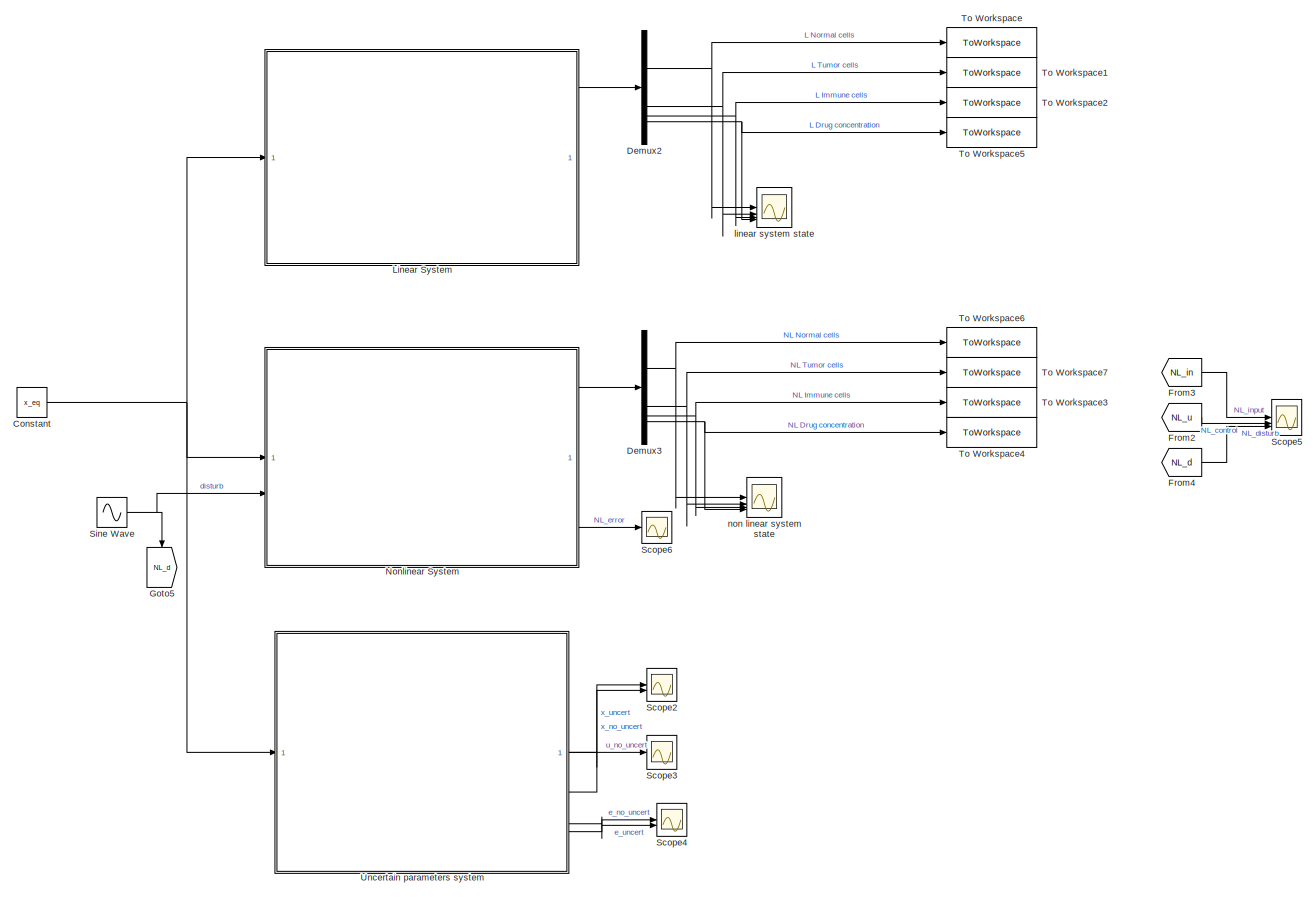
[diagram: root canvas - part 1/1, most of the canvas]
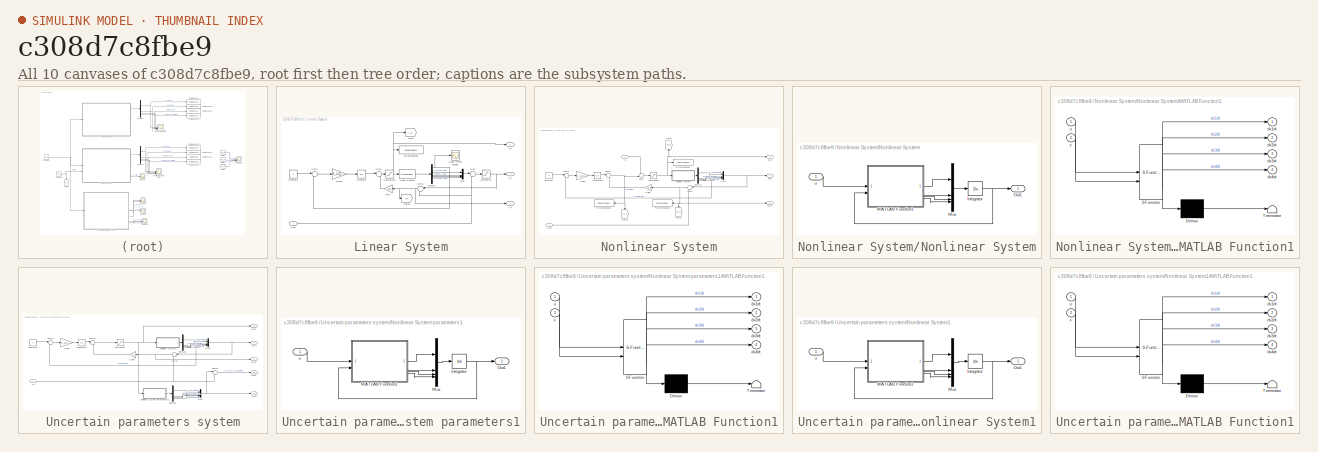
[diagram: thumbnail index - all 10 canvases of the model, root first then tree order]
MODEL slx_c308d7c8fbe9
KIND model
CONFIG AbsTol = auto
CONFIG EnableMultiTasking = off
CONFIG FixedStep = auto
CONFIG MaxStep = auto
CONFIG MinStep = auto
CONFIG RelTol = 1e-3
CONFIG SampleTimeConstraint = Unconstrained
CONFIG SolverName = ode45
CONFIG StartTime = 0.0
CONFIG StopTime = 100
BLOCK [Constant] Constant
  Value = x_eq
BLOCK [Demux] Demux2
BLOCK [Demux] Demux3
BLOCK [From] From2
  GotoTag = NL_u
BLOCK [From] From3
  GotoTag = NL_in
BLOCK [From] From4
  GotoTag = NL_d
BLOCK [Goto] Goto5
  GotoTag = NL_d
  NameLocation = left
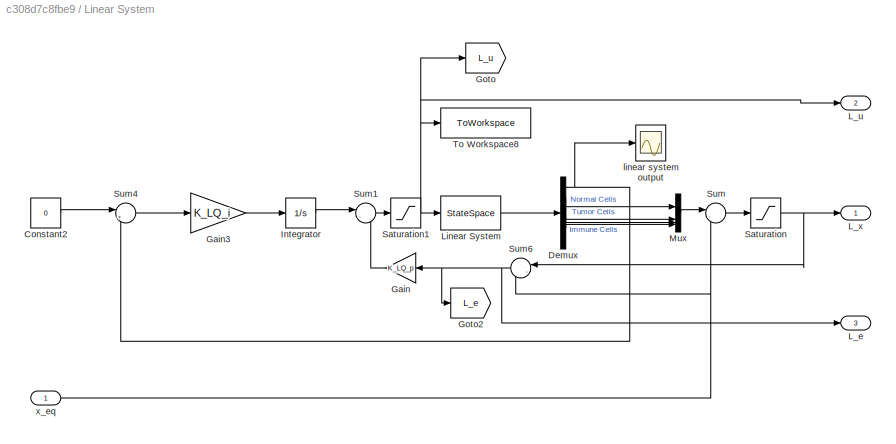
BLOCK [SubSystem] Linear System
BLOCK [Constant] Linear System/Constant2
  Value = 0
BLOCK [Demux] Linear System/Demux
  Outputs = 6
BLOCK [Gain] Linear System/Gain
  Gain = K_LQ_p
  Multiplication = Matrix(K*u)
  NameLocation = top
BLOCK [Gain] Linear System/Gain3
  Gain = K_LQ_i
  Multiplication = Matrix(K*u)
BLOCK [Goto] Linear System/Goto
  GotoTag = L_u
BLOCK [Goto] Linear System/Goto2
  GotoTag = L_e
BLOCK [Integrator] Linear System/Integrator
BLOCK [Outport] Linear System/L_e
  Port = 3
BLOCK [Outport] Linear System/L_u
  Port = 2
BLOCK [Outport] Linear System/L_x
BLOCK [StateSpace] Linear System/Linear System
  A = A_int
  B = B_int
  C = [C_int;eye(5)]
  D = [0,0,0,0,0,0]'
  InitialCondition = e_init
BLOCK [Mux] Linear System/Mux
  DisplayOption = bar
BLOCK [Saturate] Linear System/Saturation
  LowerLimit = 0
  UpperLimit = 100
BLOCK [Saturate] Linear System/Saturation1
  LowerLimit = -100
  UpperLimit = 0
BLOCK [Sum] Linear System/Sum
  Inputs = |-+
BLOCK [Sum] Linear System/Sum1
  Inputs = |--
BLOCK [Sum] Linear System/Sum4
  Inputs = |+-
BLOCK [Sum] Linear System/Sum6
  Inputs = |-+
  NameLocation = top
BLOCK [ToWorkspace] Linear System/To Workspace8
  FixptAsFi = on
  MaxDataPoints = inf
  SampleTime = -1
  SaveFormat = Timeseries
  VariableName = L_control
BLOCK [Scope] Linear System/linear system output
  Floating = off
  NumInputPorts = 1
  ScopeSpecificationString = Simulink.scopes.TimeScopeBlockCfg('CurrentConfiguration', extmgr.ConfigurationSet(extmgr.Configuration('Core','General UI',true),extmgr.Configuration('Core','Source UI',true),extmgr.Configuration('Sources','WiredSimulink',true,'DataLoggingVariableName','ScopeData1'),extmgr.Configuration('Visuals','Time Domain',true,'SerializedDisplays',{struct('MinYLimReal','-0.34942','MaxYLimReal','0.14476','YLab...<+1528ch>
BLOCK [Inport] Linear System/x_eq
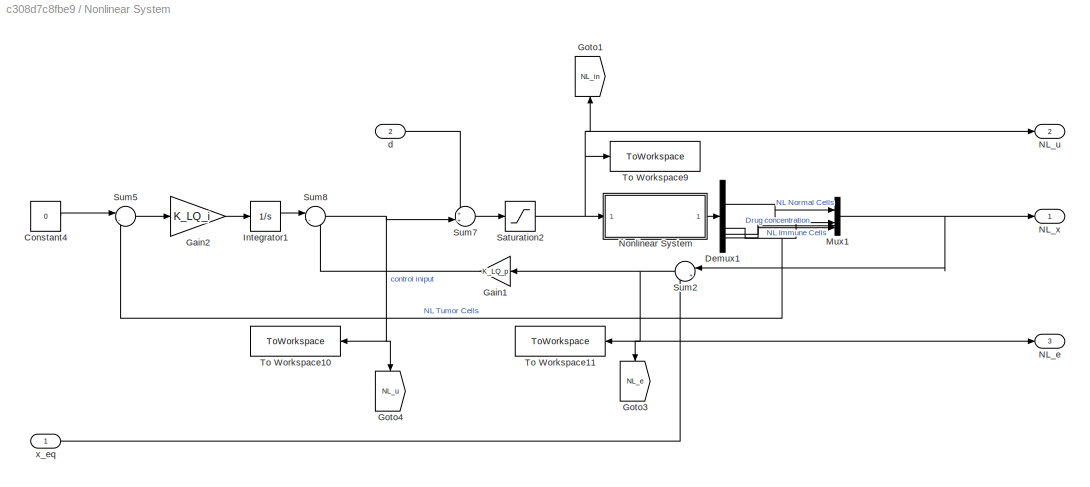
BLOCK [SubSystem] Nonlinear System
BLOCK [Constant] Nonlinear System/Constant4
  Value = 0
BLOCK [Demux] Nonlinear System/Demux1
BLOCK [Gain] Nonlinear System/Gain1
  Gain = K_LQ_p
  Multiplication = Matrix(K*u)
  NameLocation = top
BLOCK [Gain] Nonlinear System/Gain2
  Gain = K_LQ_i
  Multiplication = Matrix(K*u)
BLOCK [Goto] Nonlinear System/Goto1
  GotoTag = NL_in
  NameLocation = right
BLOCK [Goto] Nonlinear System/Goto3
  GotoTag = NL_e
  NameLocation = left
BLOCK [Goto] Nonlinear System/Goto4
  GotoTag = NL_u
  NameLocation = left
BLOCK [Integrator] Nonlinear System/Integrator1
BLOCK [Mux] Nonlinear System/Mux1
  DisplayOption = bar
BLOCK [Outport] Nonlinear System/NL_e
  Port = 3
BLOCK [Outport] Nonlinear System/NL_u
  Port = 2
BLOCK [Outport] Nonlinear System/NL_x
BLOCK [SubSystem] Nonlinear System/Nonlinear System
BLOCK [Integrator] Nonlinear System/Nonlinear System/Integrator
  InitialCondition = x_0
  LimitOutput = on
  LowerSaturationLimit = 0
  UpperSaturationLimit = +inf
BLOCK [SubSystem] Nonlinear System/Nonlinear System/MATLAB Function1
  ErrorFcn = Stateflow.Translate.translate
  PermitHierarchicalResolution = ExplicitOnly
  SFBlockType = MATLAB Function
  TreatAsAtomicUnit = on
BLOCK [Demux] Nonlinear System/Nonlinear System/MATLAB Function1/ Demux 
  Outputs = 1
BLOCK [S-Function] Nonlinear System/Nonlinear System/MATLAB Function1/ SFunction 
  EnableBusSupport = on
  FunctionName = sf_sfun
  Parameters = alpha,b1,b2,c1,c2,c3,c4,d1,gamma1,gamma2,gamma3,k,r1,r2,rho,s
  PortCounts = [2 5]
  SFcnIsStateOwnerBlock = off
  SFunctionDeploymentMode = off
  Tag = Stateflow S-Function 1
BLOCK [Terminator] Nonlinear System/Nonlinear System/MATLAB Function1/ Terminator 
BLOCK [Outport] Nonlinear System/Nonlinear System/MATLAB Function1/dx1dt
BLOCK [Outport] Nonlinear System/Nonlinear System/MATLAB Function1/dx2dt
  Port = 2
BLOCK [Outport] Nonlinear System/Nonlinear System/MATLAB Function1/dx3dt
  Port = 3
BLOCK [Outport] Nonlinear System/Nonlinear System/MATLAB Function1/dx4dt
  Port = 4
BLOCK [Inport] Nonlinear System/Nonlinear System/MATLAB Function1/u
BLOCK [Inport] Nonlinear System/Nonlinear System/MATLAB Function1/x
  Port = 2
BLOCK [Mux] Nonlinear System/Nonlinear System/Mux
  DisplayOption = bar
BLOCK [Outport] Nonlinear System/Nonlinear System/Out1
BLOCK [Inport] Nonlinear System/Nonlinear System/u
BLOCK [Saturate] Nonlinear System/Saturation2
  LowerLimit = 0
  UpperLimit = inf
  ZeroCross = off
BLOCK [Sum] Nonlinear System/Sum2
  Inputs = |+-
  NameLocation = top
BLOCK [Sum] Nonlinear System/Sum5
  Inputs = |-+
BLOCK [Sum] Nonlinear System/Sum7
  Inputs = ++|
BLOCK [Sum] Nonlinear System/Sum8
  Inputs = |--
BLOCK [ToWorkspace] Nonlinear System/To Workspace10
  FixptAsFi = on
  MaxDataPoints = inf
  NameLocation = top
  SampleTime = -1
  SaveFormat = Timeseries
  VariableName = NL_control_u
BLOCK [ToWorkspace] Nonlinear System/To Workspace11
  FixptAsFi = on
  MaxDataPoints = inf
  NameLocation = top
  SampleTime = -1
  SaveFormat = Timeseries
  VariableName = LQR_error
BLOCK [ToWorkspace] Nonlinear System/To Workspace9
  FixptAsFi = on
  MaxDataPoints = inf
  SampleTime = -1
  SaveFormat = Timeseries
  VariableName = LQR_control
BLOCK [Inport] Nonlinear System/d
  Port = 2
BLOCK [Inport] Nonlinear System/x_eq
BLOCK [Scope] Scope2
  Floating = off
  NumInputPorts = 2
  ScopeSpecificationString = Simulink.scopes.TimeScopeBlockCfg('CurrentConfiguration', extmgr.ConfigurationSet(extmgr.Configuration('Core','General UI',true,'FigureColor',[1 1 1]),extmgr.Configuration('Core','Source UI',true),extmgr.Configuration('Sources','WiredSimulink',true,'DataLoggingVariableName','ScopeData1'),extmgr.Configuration('Visuals','Time Domain',true,'SerializedDisplays',{struct('MinYLimReal','-0.20625','MaxYLi...<+2485ch>
BLOCK [Scope] Scope3
  Floating = off
  NumInputPorts = 1
  ScopeSpecificationString = Simulink.scopes.TimeScopeBlockCfg('CurrentConfiguration', extmgr.ConfigurationSet(extmgr.Configuration('Core','General UI',true,'FigureColor',[1 1 1]),extmgr.Configuration('Core','Source UI',true),extmgr.Configuration('Sources','WiredSimulink',true,'DataLoggingVariableName','ScopeData2'),extmgr.Configuration('Visuals','Time Domain',true,'SerializedDisplays',{struct('MinYLimReal','-0.34556','MaxYLi...<+1585ch>
BLOCK [Scope] Scope4
  Floating = off
  NumInputPorts = 2
  ScopeSpecificationString = Simulink.scopes.TimeScopeBlockCfg('CurrentConfiguration', extmgr.ConfigurationSet(extmgr.Configuration('Core','General UI',true,'FigureColor',[1 1 1]),extmgr.Configuration('Core','Source UI',true),extmgr.Configuration('Sources','WiredSimulink',true,'DataLoggingVariableName','ScopeData3'),extmgr.Configuration('Visuals','Time Domain',true,'SerializedDisplays',{struct('MinYLimReal','-1.01794','MaxYLi...<+1644ch>
BLOCK [Scope] Scope5
  Floating = off
  NumInputPorts = 3
  ScopeSpecificationString = Simulink.scopes.TimeScopeBlockCfg('CurrentConfiguration', extmgr.ConfigurationSet(extmgr.Configuration('Core','General UI',true,'FigureColor',[1 1 1]),extmgr.Configuration('Core','Source UI',true),extmgr.Configuration('Sources','WiredSimulink',true,'DataLoggingVariableName','ScopeData2'),extmgr.Configuration('Visuals','Time Domain',true,'SerializedDisplays',{struct('MinYLimReal','-1.87465','MaxYLi...<+2023ch>
BLOCK [Scope] Scope6
  Floating = off
  NumInputPorts = 1
  ScopeSpecificationString = Simulink.scopes.TimeScopeBlockCfg('CurrentConfiguration', extmgr.ConfigurationSet(extmgr.Configuration('Core','General UI',true,'FigureColor',[1 1 1]),extmgr.Configuration('Core','Source UI',true),extmgr.Configuration('Sources','WiredSimulink',true,'DataLoggingVariableName','ScopeData4'),extmgr.Configuration('Visuals','Time Domain',true,'SerializedDisplays',{struct('MinYLimReal','-1.05401','MaxYLi...<+1605ch>
BLOCK [Sin] Sine Wave
  Amplitude = 1.5
  Frequency = 0.5
  SampleTime = 0
BLOCK [ToWorkspace] To Workspace
  FixptAsFi = on
  MaxDataPoints = inf
  SampleTime = -1
  SaveFormat = Timeseries
  VariableName = L_normal
BLOCK [ToWorkspace] To Workspace1
  FixptAsFi = on
  MaxDataPoints = inf
  SampleTime = -1
  SaveFormat = Timeseries
  VariableName = L_tumor
BLOCK [ToWorkspace] To Workspace2
  FixptAsFi = on
  MaxDataPoints = inf
  SampleTime = -1
  SaveFormat = Timeseries
  VariableName = L_immune
BLOCK [ToWorkspace] To Workspace3
  FixptAsFi = on
  MaxDataPoints = inf
  SampleTime = -1
  SaveFormat = Timeseries
  VariableName = LQR_immune
BLOCK [ToWorkspace] To Workspace4
  FixptAsFi = on
  MaxDataPoints = inf
  SampleTime = -1
  SaveFormat = Timeseries
  VariableName = LQR_drug
BLOCK [ToWorkspace] To Workspace5
  FixptAsFi = on
  MaxDataPoints = inf
  SampleTime = -1
  SaveFormat = Timeseries
  VariableName = L_drug
BLOCK [ToWorkspace] To Workspace6
  FixptAsFi = on
  MaxDataPoints = inf
  SampleTime = -1
  SaveFormat = Timeseries
  VariableName = LQR_normal
BLOCK [ToWorkspace] To Workspace7
  FixptAsFi = on
  MaxDataPoints = inf
  SampleTime = -1
  SaveFormat = Timeseries
  VariableName = LQR_tumor
BLOCK [SubSystem] Uncertain parameters system
BLOCK [Constant] Uncertain parameters system/Constant8
  Value = 0
BLOCK [Demux] Uncertain parameters system/Demux6
BLOCK [Demux] Uncertain parameters system/Demux8
BLOCK [Gain] Uncertain parameters system/Gain6
  Gain = K_LQ_p
  Multiplication = Matrix(K*u)
  NameLocation = top
BLOCK [Gain] Uncertain parameters system/Gain7
  Gain = K_LQ_i
  Multiplication = Matrix(K*u)
BLOCK [Inport] Uncertain parameters system/In1
BLOCK [Integrator] Uncertain parameters system/Integrator3
BLOCK [Mux] Uncertain parameters system/Mux3
  DisplayOption = bar
BLOCK [Mux] Uncertain parameters system/Mux4
  DisplayOption = bar
BLOCK [SubSystem] Uncertain parameters system/Nonlinear System parameters1
BLOCK [Integrator] Uncertain parameters system/Nonlinear System parameters1/Integrator
  InitialCondition = x_0
  LimitOutput = on
  LowerSaturationLimit = 0
  UpperSaturationLimit = +inf
BLOCK [SubSystem] Uncertain parameters system/Nonlinear System parameters1/MATLAB Function1
  ErrorFcn = Stateflow.Translate.translate
  PermitHierarchicalResolution = ExplicitOnly
  SFBlockType = MATLAB Function
  TreatAsAtomicUnit = on
BLOCK [Demux] Uncertain parameters system/Nonlinear System parameters1/MATLAB Function1/ Demux 
  Outputs = 1
BLOCK [S-Function] Uncertain parameters system/Nonlinear System parameters1/MATLAB Function1/ SFunction 
  EnableBusSupport = on
  FunctionName = sf_sfun
  Parameters = alpha,b1,b2,c1,c2,c3,c4,d1,gamma1,gamma2,gamma3,k,r1,r2,rho,s
  PortCounts = [2 5]
  SFcnIsStateOwnerBlock = off
  SFunctionDeploymentMode = off
  Tag = Stateflow S-Function 3
BLOCK [Terminator] Uncertain parameters system/Nonlinear System parameters1/MATLAB Function1/ Terminator 
BLOCK [Outport] Uncertain parameters system/Nonlinear System parameters1/MATLAB Function1/dx1dt
BLOCK [Outport] Uncertain parameters system/Nonlinear System parameters1/MATLAB Function1/dx2dt
  Port = 2
BLOCK [Outport] Uncertain parameters system/Nonlinear System parameters1/MATLAB Function1/dx3dt
  Port = 3
BLOCK [Outport] Uncertain parameters system/Nonlinear System parameters1/MATLAB Function1/dx4dt
  Port = 4
BLOCK [Inport] Uncertain parameters system/Nonlinear System parameters1/MATLAB Function1/u
BLOCK [Inport] Uncertain parameters system/Nonlinear System parameters1/MATLAB Function1/x
  Port = 2
BLOCK [Mux] Uncertain parameters system/Nonlinear System parameters1/Mux
  DisplayOption = bar
BLOCK [Outport] Uncertain parameters system/Nonlinear System parameters1/Out1
BLOCK [Inport] Uncertain parameters system/Nonlinear System parameters1/u
BLOCK [SubSystem] Uncertain parameters system/Nonlinear System1
BLOCK [Integrator] Uncertain parameters system/Nonlinear System1/Integrator
  InitialCondition = x_0
  LimitOutput = on
  LowerSaturationLimit = 0
  UpperSaturationLimit = +inf
BLOCK [SubSystem] Uncertain parameters system/Nonlinear System1/MATLAB Function1
  ErrorFcn = Stateflow.Translate.translate
  PermitHierarchicalResolution = ExplicitOnly
  SFBlockType = MATLAB Function
  TreatAsAtomicUnit = on
BLOCK [Demux] Uncertain parameters system/Nonlinear System1/MATLAB Function1/ Demux 
  Outputs = 1
BLOCK [S-Function] Uncertain parameters system/Nonlinear System1/MATLAB Function1/ SFunction 
  EnableBusSupport = on
  FunctionName = sf_sfun
  Parameters = alpha,b1,b2,c1,c2,c3,c4,d1,gamma1,gamma2,gamma3,k,r1,r2,rho,s
  PortCounts = [2 5]
  SFcnIsStateOwnerBlock = off
  SFunctionDeploymentMode = off
  Tag = Stateflow S-Function 4
BLOCK [Terminator] Uncertain parameters system/Nonlinear System1/MATLAB Function1/ Terminator 
BLOCK [Outport] Uncertain parameters system/Nonlinear System1/MATLAB Function1/dx1dt
BLOCK [Outport] Uncertain parameters system/Nonlinear System1/MATLAB Function1/dx2dt
  Port = 2
BLOCK [Outport] Uncertain parameters system/Nonlinear System1/MATLAB Function1/dx3dt
  Port = 3
BLOCK [Outport] Uncertain parameters system/Nonlinear System1/MATLAB Function1/dx4dt
  Port = 4
BLOCK [Inport] Uncertain parameters system/Nonlinear System1/MATLAB Function1/u
BLOCK [Inport] Uncertain parameters system/Nonlinear System1/MATLAB Function1/x
  Port = 2
BLOCK [Mux] Uncertain parameters system/Nonlinear System1/Mux
  DisplayOption = bar
BLOCK [Outport] Uncertain parameters system/Nonlinear System1/Out1
BLOCK [Inport] Uncertain parameters system/Nonlinear System1/u
BLOCK [Outport] Uncertain parameters system/Out1
BLOCK [Outport] Uncertain parameters system/Out2
  Port = 2
BLOCK [Outport] Uncertain parameters system/Out3
  Port = 3
BLOCK [Outport] Uncertain parameters system/Out5
  Port = 4
BLOCK [Outport] Uncertain parameters system/Out6
  Port = 5
BLOCK [Saturate] Uncertain parameters system/Saturation4
  LowerLimit = 0
  UpperLimit = inf
BLOCK [Sum] Uncertain parameters system/Sum12
  Inputs = |+-
  NameLocation = top
BLOCK [Sum] Uncertain parameters system/Sum13
  Inputs = |+-
BLOCK [Sum] Uncertain parameters system/Sum14
  Inputs = |-+
BLOCK [Sum] Uncertain parameters system/Sum16
  Inputs = |--
BLOCK [Scope] linear system state
  Floating = off
  NumInputPorts = 4
  ScopeSpecificationString = Simulink.scopes.TimeScopeBlockCfg('CurrentConfiguration', extmgr.ConfigurationSet(extmgr.Configuration('Core','General UI',true,'FigureColor',[1 1 1]),extmgr.Configuration('Core','Source UI',true),extmgr.Configuration('Sources','WiredSimulink',true),extmgr.Configuration('Visuals','Time Domain',true,'PlotType','Line','SerializedDisplays',{struct('MinYLimReal','-0.22102','MaxYLimReal','1.98918','YLa...<+2344ch>
BLOCK [Scope] non linear system state
  Floating = off
  NumInputPorts = 4
  ScopeSpecificationString = Simulink.scopes.TimeScopeBlockCfg('CurrentConfiguration', extmgr.ConfigurationSet(extmgr.Configuration('Core','General UI',true,'FigureColor',[1 1 1]),extmgr.Configuration('Core','Source UI',true),extmgr.Configuration('Sources','WiredSimulink',true,'DataLoggingVariableName','ScopeData1'),extmgr.Configuration('Visuals','Time Domain',true,'PlotType','Line','SerializedDisplays',{struct('MinYLimReal',...<+2619ch>
NET Constant:1 -> Linear System:1, Nonlinear System:1, Uncertain parameters system:1
NET Demux2:1 -> To Workspace:1, linear system state:1
NET Demux2:2 -> To Workspace1:1, linear system state:2
NET Demux2:3 -> To Workspace2:1, linear system state:3
NET Demux2:4 -> To Workspace5:1, linear system state:4
NET Demux3:1 -> To Workspace6:1, non linear system state:1
NET Demux3:2 -> To Workspace7:1, non linear system state:2
NET Demux3:3 -> To Workspace3:1, non linear system state:3
NET Demux3:4 -> To Workspace4:1, non linear system state:4
LINE From2:1 -> Scope5:2
LINE From3:1 -> Scope5:1
LINE From4:1 -> Scope5:3
LINE Linear System/Constant2:1 -> Linear System/Sum4:1
NET Linear System/Demux:1 -> Linear System/Sum4:2, Linear System/linear system output:1
LINE Linear System/Demux:2 -> Linear System/Mux:1
LINE Linear System/Demux:3 -> Linear System/Mux:2
LINE Linear System/Demux:4 -> Linear System/Mux:3
LINE Linear System/Demux:5 -> Linear System/Mux:4
LINE Linear System/Gain3:1 -> Linear System/Integrator:1
LINE Linear System/Gain:1 -> Linear System/Sum1:2
LINE Linear System/Integrator:1 -> Linear System/Sum1:1
LINE Linear System/Linear System:1 -> Linear System/Demux:1
LINE Linear System/Mux:1 -> Linear System/Sum:1
NET Linear System/Saturation1:1 -> Linear System/Goto:1, Linear System/L_u:1, Linear System/Linear System:1, Linear System/To Workspace8:1
NET Linear System/Saturation:1 -> Linear System/L_x:1, Linear System/Sum6:1
LINE Linear System/Sum1:1 -> Linear System/Saturation1:1
LINE Linear System/Sum4:1 -> Linear System/Gain3:1
NET Linear System/Sum6:1 -> Linear System/Gain:1, Linear System/Goto2:1, Linear System/L_e:1
LINE Linear System/Sum:1 -> Linear System/Saturation:1
NET Linear System/x_eq:1 -> Linear System/Sum6:2, Linear System/Sum:2
LINE Linear System:1 -> Demux2:1
LINE Nonlinear System/Constant4:1 -> Nonlinear System/Sum5:1
LINE Nonlinear System/Demux1:1 -> Nonlinear System/Mux1:1
NET Nonlinear System/Demux1:2 -> Nonlinear System/Mux1:2, Nonlinear System/Sum5:2
LINE Nonlinear System/Demux1:3 -> Nonlinear System/Mux1:3
LINE Nonlinear System/Demux1:4 -> Nonlinear System/Mux1:4
LINE Nonlinear System/Gain1:1 -> Nonlinear System/Sum8:2
LINE Nonlinear System/Gain2:1 -> Nonlinear System/Integrator1:1
LINE Nonlinear System/Integrator1:1 -> Nonlinear System/Sum8:1
NET Nonlinear System/Mux1:1 -> Nonlinear System/NL_x:1, Nonlinear System/Sum2:1
NET Nonlinear System/Nonlinear System/Integrator:1 -> Nonlinear System/Nonlinear System/MATLAB Function1:2, Nonlinear System/Nonlinear System/Out1:1
LINE Nonlinear System/Nonlinear System/MATLAB Function1:1 -> Nonlinear System/Nonlinear System/Mux:1
LINE Nonlinear System/Nonlinear System/MATLAB Function1:2 -> Nonlinear System/Nonlinear System/Mux:2
LINE Nonlinear System/Nonlinear System/MATLAB Function1:3 -> Nonlinear System/Nonlinear System/Mux:3
LINE Nonlinear System/Nonlinear System/MATLAB Function1:4 -> Nonlinear System/Nonlinear System/Mux:4
LINE Nonlinear System/Nonlinear System/Mux:1 -> Nonlinear System/Nonlinear System/Integrator:1
LINE Nonlinear System/Nonlinear System/u:1 -> Nonlinear System/Nonlinear System/MATLAB Function1:1
LINE Nonlinear System/Nonlinear System:1 -> Nonlinear System/Demux1:1
NET Nonlinear System/Saturation2:1 -> Nonlinear System/Goto1:1, Nonlinear System/NL_u:1, Nonlinear System/Nonlinear System:1, Nonlinear System/To Workspace9:1
NET Nonlinear System/Sum2:1 -> Nonlinear System/Gain1:1, Nonlinear System/Goto3:1, Nonlinear System/NL_e:1, Nonlinear System/To Workspace11:1
LINE Nonlinear System/Sum5:1 -> Nonlinear System/Gain2:1
LINE Nonlinear System/Sum7:1 -> Nonlinear System/Saturation2:1
NET Nonlinear System/Sum8:1 -> Nonlinear System/Goto4:1, Nonlinear System/Sum7:2, Nonlinear System/To Workspace10:1
LINE Nonlinear System/d:1 -> Nonlinear System/Sum7:1
LINE Nonlinear System/x_eq:1 -> Nonlinear System/Sum2:2
LINE Nonlinear System:1 -> Demux3:1
LINE Nonlinear System:3 -> Scope6:1
NET Sine Wave:1 -> Goto5:1, Nonlinear System:2
LINE Uncertain parameters system/Constant8:1 -> Uncertain parameters system/Sum14:1
LINE Uncertain parameters system/Demux6:1 -> Uncertain parameters system/Mux3:1
NET Uncertain parameters system/Demux6:2 -> Uncertain parameters system/Mux3:2, Uncertain parameters system/Sum14:2
LINE Uncertain parameters system/Demux6:3 -> Uncertain parameters system/Mux3:3
LINE Uncertain parameters system/Demux6:4 -> Uncertain parameters system/Mux3:4
LINE Uncertain parameters system/Demux8:1 -> Uncertain parameters system/Mux4:1
LINE Uncertain parameters system/Demux8:2 -> Uncertain parameters system/Mux4:2
LINE Uncertain parameters system/Demux8:3 -> Uncertain parameters system/Mux4:3
LINE Uncertain parameters system/Demux8:4 -> Uncertain parameters system/Mux4:4
LINE Uncertain parameters system/Gain6:1 -> Uncertain parameters system/Sum16:2
LINE Uncertain parameters system/Gain7:1 -> Uncertain parameters system/Integrator3:1
NET Uncertain parameters system/In1:1 -> Uncertain parameters system/Sum12:2, Uncertain parameters system/Sum13:2
LINE Uncertain parameters system/Integrator3:1 -> Uncertain parameters system/Sum16:1
NET Uncertain parameters system/Mux3:1 -> Uncertain parameters system/Out1:1, Uncertain parameters system/Sum12:1
NET Uncertain parameters system/Mux4:1 -> Uncertain parameters system/Out2:1, Uncertain parameters system/Sum13:1
NET Uncertain parameters system/Nonlinear System parameters1/Integrator:1 -> Uncertain parameters system/Nonlinear System parameters1/MATLAB Function1:2, Uncertain parameters system/Nonlinear System parameters1/Out1:1
LINE Uncertain parameters system/Nonlinear System parameters1/MATLAB Function1:1 -> Uncertain parameters system/Nonlinear System parameters1/Mux:1
LINE Uncertain parameters system/Nonlinear System parameters1/MATLAB Function1:2 -> Uncertain parameters system/Nonlinear System parameters1/Mux:2
LINE Uncertain parameters system/Nonlinear System parameters1/MATLAB Function1:3 -> Uncertain parameters system/Nonlinear System parameters1/Mux:3
LINE Uncertain parameters system/Nonlinear System parameters1/MATLAB Function1:4 -> Uncertain parameters system/Nonlinear System parameters1/Mux:4
LINE Uncertain parameters system/Nonlinear System parameters1/Mux:1 -> Uncertain parameters system/Nonlinear System parameters1/Integrator:1
LINE Uncertain parameters system/Nonlinear System parameters1/u:1 -> Uncertain parameters system/Nonlinear System parameters1/MATLAB Function1:1
LINE Uncertain parameters system/Nonlinear System parameters1:1 -> Uncertain parameters system/Demux8:1
NET Uncertain parameters system/Nonlinear System1/Integrator:1 -> Uncertain parameters system/Nonlinear System1/MATLAB Function1:2, Uncertain parameters system/Nonlinear System1/Out1:1
LINE Uncertain parameters system/Nonlinear System1/MATLAB Function1:1 -> Uncertain parameters system/Nonlinear System1/Mux:1
LINE Uncertain parameters system/Nonlinear System1/MATLAB Function1:2 -> Uncertain parameters system/Nonlinear System1/Mux:2
LINE Uncertain parameters system/Nonlinear System1/MATLAB Function1:3 -> Uncertain parameters system/Nonlinear System1/Mux:3
LINE Uncertain parameters system/Nonlinear System1/MATLAB Function1:4 -> Uncertain parameters system/Nonlinear System1/Mux:4
LINE Uncertain parameters system/Nonlinear System1/Mux:1 -> Uncertain parameters system/Nonlinear System1/Integrator:1
LINE Uncertain parameters system/Nonlinear System1/u:1 -> Uncertain parameters system/Nonlinear System1/MATLAB Function1:1
LINE Uncertain parameters system/Nonlinear System1:1 -> Uncertain parameters system/Demux6:1
NET Uncertain parameters system/Saturation4:1 -> Uncertain parameters system/Nonlinear System parameters1:1, Uncertain parameters system/Nonlinear System1:1, Uncertain parameters system/Out3:1
NET Uncertain parameters system/Sum12:1 -> Uncertain parameters system/Gain6:1, Uncertain parameters system/Out5:1
LINE Uncertain parameters system/Sum13:1 -> Uncertain parameters system/Out6:1
LINE Uncertain parameters system/Sum14:1 -> Uncertain parameters system/Gain7:1
LINE Uncertain parameters system/Sum16:1 -> Uncertain parameters system/Saturation4:1
LINE Uncertain parameters system:1 -> Scope2:1
LINE Uncertain parameters system:2 -> Scope2:2
LINE Uncertain parameters system:3 -> Scope3:1
LINE Uncertain parameters system:4 -> Scope4:1
LINE Uncertain parameters system:5 -> Scope4:2
note: NET lines group one-source signal fan-out (src -> all destinations, sorted); 1:1 wires keep LINE
CHART Nonlinear System/Nonlinear System/MATLAB Function1 states=1 transitions=1
  STATE_LABEL 'eML_blk_kernel()'
  STATE_LABEL 'SCRIPT:\nfunction [dx1dt,dx2dt,dx3dt, dx4dt] = tumor_growth(u,x,r1, r2, b1, b2, c1, c3, c2, c4, rho, alpha, s, d1, gamma1, gamma2, gamma3, k)\n\n    x1 = x(1);       % (normal cells)\n    x2 = x(2);       % (tumor cells)\n    x3 = x(3);       % (immune cells)\n    x4 = x(4);       % (drug concentration)\n    \n    dx1dt = r2 * x1 * (1 - b2 * x1) - c4 * x2 * x1 - gamma1 * x4;\n    dx2dt = r1 * x2 * (1 - b1 ...<+167ch>'
CHART Uncertain parameters system/Nonlinear System parameters1/MATLAB Function1 states=1 transitions=1
  STATE_LABEL 'eML_blk_kernel()'
  STATE_LABEL 'SCRIPT:\nfunction [dx1dt,dx2dt,dx3dt, dx4dt] = tumor_growth(u,x,r1, r2, b1, b2, c1, c3, c2, c4, rho, alpha, s, d1, gamma1, gamma2, gamma3, k)\n\n    c1_real = c1*(1-0.5);\n    c4_real = c4*(1-0.5);\n\n    x1 = x(1);       % (normal cells)\n    x2 = x(2);       % (tumor cells)\n    x3 = x(3);       % (immune cells)\n    x4 = x(4);       % (drug concentration)\n    \n    dx1dt = r2 * x1 * (1 - b2 * x1) - c4_re...<+230ch>'
CHART Uncertain parameters system/Nonlinear System1/MATLAB Function1 states=1 transitions=1
  STATE_LABEL 'eML_blk_kernel()'
  STATE_LABEL 'SCRIPT:\nfunction [dx1dt,dx2dt,dx3dt, dx4dt] = tumor_growth(u,x,r1, r2, b1, b2, c1, c3, c2, c4, rho, alpha, s, d1, gamma1, gamma2, gamma3, k)\n\n    x1 = x(1);       % (normal cells)\n    x2 = x(2);       % (tumor cells)\n    x3 = x(3);       % (immune cells)\n    x4 = x(4);       % (drug concentration)\n    \n    dx1dt = r2 * x1 * (1 - b2 * x1) - c4 * x2 * x1 - gamma1 * x4;\n    dx2dt = r1 * x2 * (1 - b1 ...<+167ch>'
CHART  states=0 transitions=0
CHART  states=0 transitions=0
CHART  states=0 transitions=0
